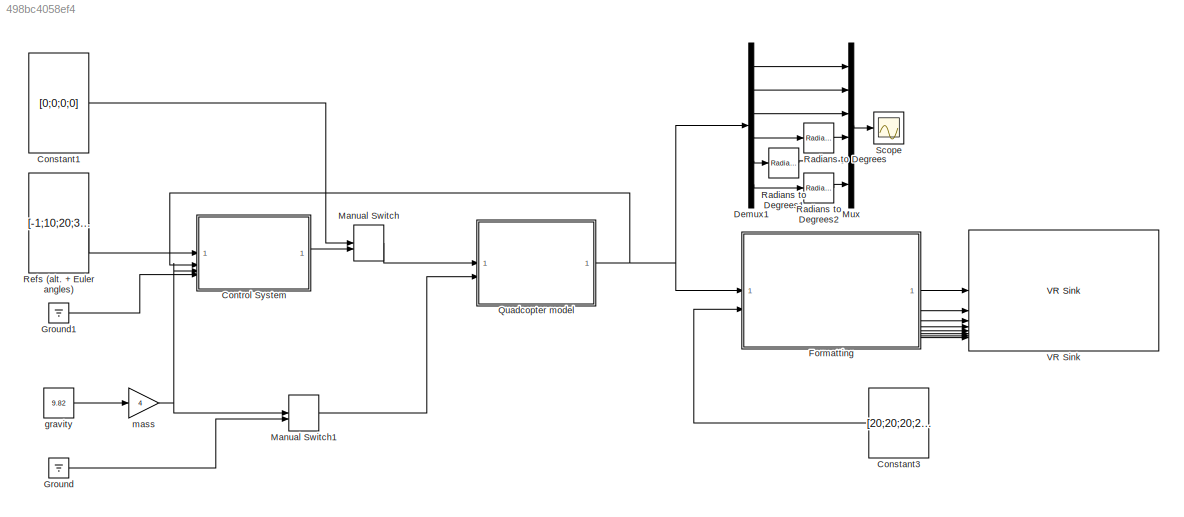
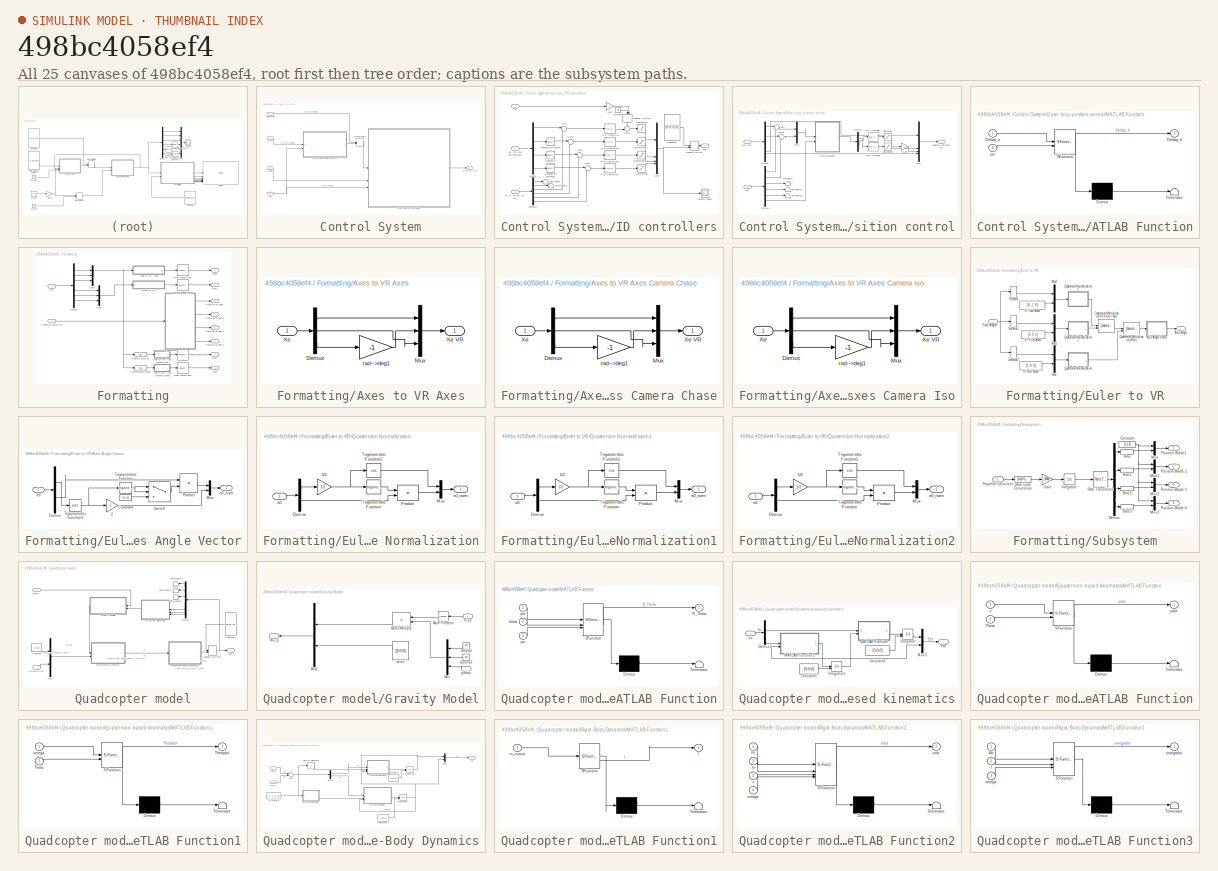
[diagram: thumbnail index - all 25 canvases of the model, root first then tree order]
MODEL slx_498bc4058ef4
KIND model
CONFIG AbsTol = auto
CONFIG EnableMultiTasking = on
CONFIG FixedStep = 0.005
CONFIG MaxStep = auto
CONFIG MinStep = auto
CONFIG RelTol = 1e-3
CONFIG SampleTimeConstraint = Unconstrained
CONFIG SolverName = ode3
CONFIG StartTime = 0
CONFIG StopTime = 15
BLOCK [Constant] Constant1
  Value = [0;0;0;0]
  VectorParams1D = off
BLOCK [Constant] Constant3
  Value = [20;20;20;20]
  VectorParams1D = off
BLOCK [SubSystem] Control System
BLOCK [Outport] Control System/Fz,mx,my,mz
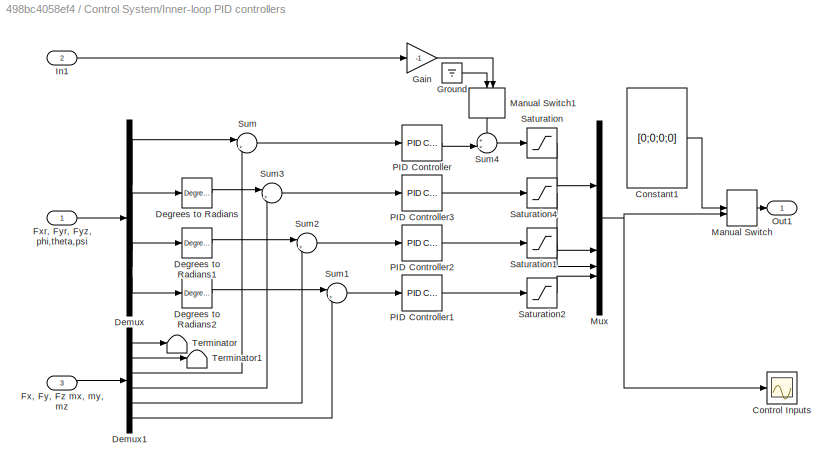
BLOCK [SubSystem] Control System/Inner-loop PID controllers
BLOCK [Constant] Control System/Inner-loop PID controllers/Constant1
  Value = [0;0;0;0]
  VectorParams1D = off
BLOCK [Scope] Control System/Inner-loop PID controllers/Control Inputs
  Floating = off
  NumInputPorts = 1
  ScopeSpecificationString = Simulink.scopes.TimeScopeBlockCfg('CurrentConfiguration', extmgr.ConfigurationSet(extmgr.Configuration('Core','General UI',true),extmgr.Configuration('Core','Source UI',true),extmgr.Configuration('Sources','WiredSimulink',true,'DataLoggingVariableName','ScopeData1'),extmgr.Configuration('Visuals','Time Domain',true,'SerializedDisplays',{struct('MinYLimReal','-16.92451','MaxYLimReal','43.53596','YL...<+1654ch>
BLOCK [Reference] Control System/Inner-loop PID controllers/Degrees to Radians  REF=simulink_extras/Transformations/Degrees to
Radians
  SourceBlock = simulink_extras/Transformations/Degrees to\nRadians
  SourceType = DegreesToRadians
BLOCK [Reference] Control System/Inner-loop PID controllers/Degrees to Radians1  REF=simulink_extras/Transformations/Degrees to
Radians
  SourceBlock = simulink_extras/Transformations/Degrees to\nRadians
  SourceType = DegreesToRadians
BLOCK [Reference] Control System/Inner-loop PID controllers/Degrees to Radians2  REF=simulink_extras/Transformations/Degrees to
Radians
  SourceBlock = simulink_extras/Transformations/Degrees to\nRadians
  SourceType = DegreesToRadians
BLOCK [Demux] Control System/Inner-loop PID controllers/Demux
BLOCK [Demux] Control System/Inner-loop PID controllers/Demux1
  Outputs = 6
BLOCK [Inport] Control System/Inner-loop PID controllers/Fx, Fy, Fz mx, my, mz
  Port = 3
BLOCK [Inport] Control System/Inner-loop PID controllers/Fxr, Fyr, Fyz, phi,theta,psi
BLOCK [Gain] Control System/Inner-loop PID controllers/Gain
  Gain = -1
BLOCK [Ground] Control System/Inner-loop PID controllers/Ground
BLOCK [Inport] Control System/Inner-loop PID controllers/In1
  Port = 2
BLOCK [ManualSwitch] Control System/Inner-loop PID controllers/Manual Switch
  CurrentSetting = 0
BLOCK [ManualSwitch] Control System/Inner-loop PID controllers/Manual Switch1
  CurrentSetting = 0
  NameLocation = left
BLOCK [Mux] Control System/Inner-loop PID controllers/Mux
  DisplayOption = bar
BLOCK [Outport] Control System/Inner-loop PID controllers/Out1
BLOCK [Reference] Control System/Inner-loop PID controllers/PID Controller  REF=slpidlib/PID Controller
  LibrarySourceBlock = simulink/Continuous/PID Controller
  SourceBlock = slpidlib/PID Controller
  SourceType = PID 1dof
BLOCK [Reference] Control System/Inner-loop PID controllers/PID Controller1  REF=slpidlib/PID Controller
  LibrarySourceBlock = simulink/Continuous/PID Controller
  SourceBlock = slpidlib/PID Controller
  SourceType = PID 1dof
BLOCK [Reference] Control System/Inner-loop PID controllers/PID Controller2  REF=slpidlib/PID Controller
  LibrarySourceBlock = simulink/Continuous/PID Controller
  SourceBlock = slpidlib/PID Controller
  SourceType = PID 1dof
BLOCK [Reference] Control System/Inner-loop PID controllers/PID Controller3  REF=slpidlib/PID Controller
  LibrarySourceBlock = simulink/Continuous/PID Controller
  SourceBlock = slpidlib/PID Controller
  SourceType = PID 1dof
BLOCK [Saturate] Control System/Inner-loop PID controllers/Saturation
  LowerLimit = -100
  UpperLimit = 100
BLOCK [Saturate] Control System/Inner-loop PID controllers/Saturation1
  LowerLimit = -100
  UpperLimit = 100
BLOCK [Saturate] Control System/Inner-loop PID controllers/Saturation2
  LowerLimit = -100
  UpperLimit = 100
BLOCK [Saturate] Control System/Inner-loop PID controllers/Saturation4
  LowerLimit = -100
  UpperLimit = 100
BLOCK [Sum] Control System/Inner-loop PID controllers/Sum
  Inputs = |+-
BLOCK [Sum] Control System/Inner-loop PID controllers/Sum1
  Inputs = |+-
BLOCK [Sum] Control System/Inner-loop PID controllers/Sum2
  Inputs = |+-
BLOCK [Sum] Control System/Inner-loop PID controllers/Sum3
  Inputs = |+-
BLOCK [Sum] Control System/Inner-loop PID controllers/Sum4
  Inputs = ++|
BLOCK [Terminator] Control System/Inner-loop PID controllers/Terminator
BLOCK [Terminator] Control System/Inner-loop PID controllers/Terminator1
BLOCK [ManualSwitch] Control System/Manual Switch
  CurrentSetting = 0
BLOCK [SubSystem] Control System/Outer loop position control
BLOCK [Demux] Control System/Outer loop position control/Demux
BLOCK [Demux] Control System/Outer loop position control/Demux1
  Outputs = 6
BLOCK [Demux] Control System/Outer loop position control/Demux2
  Outputs = 2
BLOCK [Gain] Control System/Outer loop position control/Gain
  Gain = -1
BLOCK [SubSystem] Control System/Outer loop position control/MATLAB Function
  ErrorFcn = Stateflow.Translate.translate
  PermitHierarchicalResolution = ExplicitOnly
  SFBlockType = MATLAB Function
  TreatAsAtomicUnit = on
BLOCK [Demux] Control System/Outer loop position control/MATLAB Function/ Demux 
  Outputs = 1
BLOCK [S-Function] Control System/Outer loop position control/MATLAB Function/ SFunction 
  EnableBusSupport = on
  FunctionName = sf_sfun
  PortCounts = [2 2]
  SFcnIsStateOwnerBlock = off
  SFunctionDeploymentMode = off
  Tag = Stateflow S-Function 7
BLOCK [Terminator] Control System/Outer loop position control/MATLAB Function/ Terminator 
BLOCK [Outport] Control System/Outer loop position control/MATLAB Function/Deltap_b
BLOCK [Inport] Control System/Outer loop position control/MATLAB Function/Deltap_e
BLOCK [Inport] Control System/Outer loop position control/MATLAB Function/psi
  Port = 2
BLOCK [Mux] Control System/Outer loop position control/Mux
  DisplayOption = bar
BLOCK [Mux] Control System/Outer loop position control/Mux1
  DisplayOption = bar
  Inputs = 2
BLOCK [Reference] Control System/Outer loop position control/PID Controller  REF=slpidlib/PID Controller
  SourceBlock = slpidlib/PID Controller
  SourceType = PID 1dof
BLOCK [Reference] Control System/Outer loop position control/PID Controller2  REF=slpidlib/PID Controller
  SourceBlock = slpidlib/PID Controller
  SourceType = PID 1dof
BLOCK [Inport] Control System/Outer loop position control/Pos. refs
BLOCK [Saturate] Control System/Outer loop position control/Saturation
  LowerLimit = -5
  UpperLimit = 5
BLOCK [Saturate] Control System/Outer loop position control/Saturation1
  LowerLimit = -5
  UpperLimit = 5
BLOCK [Sum] Control System/Outer loop position control/Sum
  Inputs = |+-
BLOCK [Sum] Control System/Outer loop position control/Sum1
  Inputs = |+-
BLOCK [Terminator] Control System/Outer loop position control/Terminator
BLOCK [Terminator] Control System/Outer loop position control/Terminator1
BLOCK [Terminator] Control System/Outer loop position control/Terminator2
BLOCK [Outport] Control System/Outer loop position control/desired z,phi,theta,psi
BLOCK [Inport] Control System/Outer loop position control/eta
  Port = 2
BLOCK [Inport] Control System/eta
  Port = 2
BLOCK [Inport] Control System/gamepad
  Port = 4
BLOCK [Inport] Control System/gravity
  Port = 3
BLOCK [Inport] Control System/refs
BLOCK [Demux] Demux1
  Outputs = 6
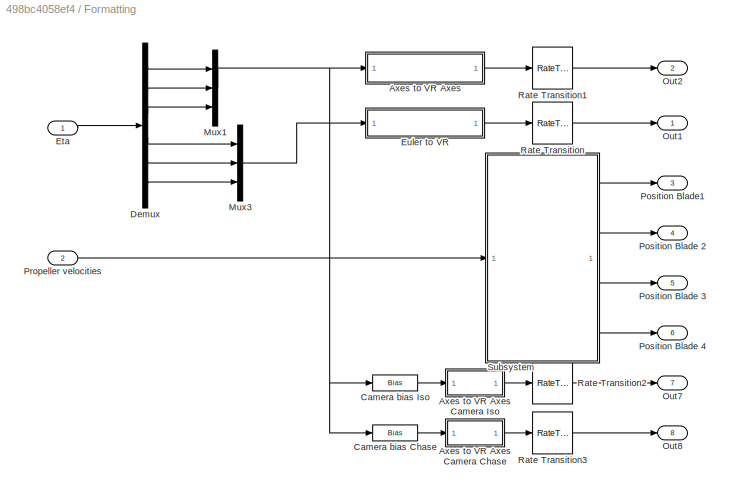
BLOCK [SubSystem] Formatting
BLOCK [SubSystem] Formatting/Axes to VR Axes
BLOCK [SubSystem] Formatting/Axes to VR Axes Camera Chase
BLOCK [Demux] Formatting/Axes to VR Axes Camera Chase/Demux
  DisplayOption = none
  Outputs = 3
BLOCK [Mux] Formatting/Axes to VR Axes Camera Chase/Mux
  DisplayOption = bar
  Inputs = 3
BLOCK [Inport] Formatting/Axes to VR Axes Camera Chase/Xe
BLOCK [Outport] Formatting/Axes to VR Axes Camera Chase/Xe VR
  VectorParamsAs1DForOutWhenUnconnected = off
BLOCK [Gain] Formatting/Axes to VR Axes Camera Chase/rad-->deg1
  Gain = -1
  NameLocation = top
  OutDataTypeStr = Inherit: Same as input
  ParamDataTypeStr = Inherit: Same as input
  SaturateOnIntegerOverflow = on
BLOCK [SubSystem] Formatting/Axes to VR Axes Camera Iso
BLOCK [Demux] Formatting/Axes to VR Axes Camera Iso/Demux
  DisplayOption = none
  Outputs = 3
BLOCK [Mux] Formatting/Axes to VR Axes Camera Iso/Mux
  DisplayOption = bar
  Inputs = 3
BLOCK [Inport] Formatting/Axes to VR Axes Camera Iso/Xe
BLOCK [Outport] Formatting/Axes to VR Axes Camera Iso/Xe VR
  VectorParamsAs1DForOutWhenUnconnected = off
BLOCK [Gain] Formatting/Axes to VR Axes Camera Iso/rad-->deg1
  Gain = -1
  NameLocation = top
  OutDataTypeStr = Inherit: Same as input
  ParamDataTypeStr = Inherit: Same as input
  SaturateOnIntegerOverflow = on
BLOCK [Demux] Formatting/Axes to VR Axes/Demux
  DisplayOption = none
  Outputs = 3
BLOCK [Mux] Formatting/Axes to VR Axes/Mux
  DisplayOption = bar
  Inputs = 3
BLOCK [Inport] Formatting/Axes to VR Axes/Xe
BLOCK [Outport] Formatting/Axes to VR Axes/Xe VR
  VectorParamsAs1DForOutWhenUnconnected = off
BLOCK [Gain] Formatting/Axes to VR Axes/rad-->deg1
  Gain = -1
  NameLocation = top
  OutDataTypeStr = Inherit: Same as input
  ParamDataTypeStr = Inherit: Same as input
  SaturateOnIntegerOverflow = on
BLOCK [Bias] Formatting/Camera bias Chase
  Bias = [-4 0 -.9558]'
  SaturateOnIntegerOverflow = off
BLOCK [Bias] Formatting/Camera bias Iso
  Bias = [0.9009 .99 -.6247]'
  SaturateOnIntegerOverflow = off
BLOCK [Demux] Formatting/Demux
  Outputs = 6
BLOCK [Inport] Formatting/Eta
BLOCK [SubSystem] Formatting/Euler to VR
BLOCK [Outport] Formatting/Euler to VR/Axis Angle
  VectorParamsAs1DForOutWhenUnconnected = off
BLOCK [SubSystem] Formatting/Euler to VR/Axis Angle Vector
BLOCK [Gain] Formatting/Euler to VR/Axis Angle Vector/2
  Gain = 2
  OutDataTypeStr = Inherit: Same as input
  ParamDataTypeStr = Inherit: Same as input
  SaturateOnIntegerOverflow = on
BLOCK [Constant] Formatting/Euler to VR/Axis Angle Vector/Constant
  Value = 1e-6
BLOCK [Demux] Formatting/Euler to VR/Axis Angle Vector/Demux
  DisplayOption = none
  Outputs = [1 3 ]
BLOCK [Mux] Formatting/Euler to VR/Axis Angle Vector/Mux
  DisplayOption = bar
  Inputs = 2
BLOCK [Product] Formatting/Euler to VR/Axis Angle Vector/Product
  InputSameDT = on
  Inputs = */
  OutDataTypeStr = Inherit: Same as first input
  SaturateOnIntegerOverflow = on
BLOCK [Switch] Formatting/Euler to VR/Axis Angle Vector/Switch
  Criteria = u2 ~= 0
  InputSameDT = off
  SaturateOnIntegerOverflow = off
BLOCK [Trigonometry] Formatting/Euler to VR/Axis Angle Vector/Trigonometric Function
BLOCK [Trigonometry] Formatting/Euler to VR/Axis Angle Vector/Trigonometric Function2
  Operator = acos
BLOCK [Inport] Formatting/Euler to VR/Axis Angle Vector/e0
BLOCK [Outport] Formatting/Euler to VR/Axis Angle Vector/e0_norm
  VectorParamsAs1DForOutWhenUnconnected = off
BLOCK [Inport] Formatting/Euler to VR/Euler Angles
BLOCK [Mux] Formatting/Euler to VR/Mux
  DisplayOption = bar
  Inputs = 2
BLOCK [Mux] Formatting/Euler to VR/Mux1
  DisplayOption = bar
  Inputs = 2
BLOCK [Mux] Formatting/Euler to VR/Mux2
  DisplayOption = bar
  Inputs = 2
BLOCK [Reference] Formatting/Euler to VR/Quaternion Multiplication (Pitch & Yaw)  REF=aerolibutil/Quaternion
Multiplication
  SourceBlock = aerolibutil/Quaternion\nMultiplication
  SourceType = Quaternion Multiplication
BLOCK [Reference] Formatting/Euler to VR/Quaternion Multiplication (Roll)  REF=aerolibutil/Quaternion
Multiplication
  SourceBlock = aerolibutil/Quaternion\nMultiplication
  SourceType = Quaternion Multiplication
BLOCK [SubSystem] Formatting/Euler to VR/Quaternion Normalization
BLOCK [Gain] Formatting/Euler to VR/Quaternion Normalization/1//2
  Gain = 1/2
  OutDataTypeStr = Inherit: Same as input
  ParamDataTypeStr = Inherit: Same as input
  SaturateOnIntegerOverflow = on
BLOCK [Demux] Formatting/Euler to VR/Quaternion Normalization/Demux
  DisplayOption = none
  Outputs = [1 3]
BLOCK [Mux] Formatting/Euler to VR/Quaternion Normalization/Mux
  DisplayOption = bar
  Inputs = 2
BLOCK [Product] Formatting/Euler to VR/Quaternion Normalization/Product
  InputSameDT = on
  OutDataTypeStr = Inherit: Same as first input
  SaturateOnIntegerOverflow = on
BLOCK [Trigonometry] Formatting/Euler to VR/Quaternion Normalization/Trigonometric Function
BLOCK [Trigonometry] Formatting/Euler to VR/Quaternion Normalization/Trigonometric Function1
  Operator = cos
BLOCK [Inport] Formatting/Euler to VR/Quaternion Normalization/e0
BLOCK [Outport] Formatting/Euler to VR/Quaternion Normalization/e0_norm
  VectorParamsAs1DForOutWhenUnconnected = off
BLOCK [SubSystem] Formatting/Euler to VR/Quaternion Normalization1
BLOCK [Gain] Formatting/Euler to VR/Quaternion Normalization1/1//2
  Gain = 1/2
  OutDataTypeStr = Inherit: Same as input
  ParamDataTypeStr = Inherit: Same as input
  SaturateOnIntegerOverflow = on
BLOCK [Demux] Formatting/Euler to VR/Quaternion Normalization1/Demux
  DisplayOption = none
  Outputs = [1 3]
BLOCK [Mux] Formatting/Euler to VR/Quaternion Normalization1/Mux
  DisplayOption = bar
  Inputs = 2
BLOCK [Product] Formatting/Euler to VR/Quaternion Normalization1/Product
  InputSameDT = on
  OutDataTypeStr = Inherit: Same as first input
  SaturateOnIntegerOverflow = on
BLOCK [Trigonometry] Formatting/Euler to VR/Quaternion Normalization1/Trigonometric Function
BLOCK [Trigonometry] Formatting/Euler to VR/Quaternion Normalization1/Trigonometric Function1
  Operator = cos
BLOCK [Inport] Formatting/Euler to VR/Quaternion Normalization1/e0
BLOCK [Outport] Formatting/Euler to VR/Quaternion Normalization1/e0_norm
  VectorParamsAs1DForOutWhenUnconnected = off
BLOCK [SubSystem] Formatting/Euler to VR/Quaternion Normalization2
BLOCK [Gain] Formatting/Euler to VR/Quaternion Normalization2/1//2
  Gain = 1/2
  OutDataTypeStr = Inherit: Same as input
  ParamDataTypeStr = Inherit: Same as input
  SaturateOnIntegerOverflow = on
BLOCK [Demux] Formatting/Euler to VR/Quaternion Normalization2/Demux
  DisplayOption = none
  Outputs = [1 3]
BLOCK [Mux] Formatting/Euler to VR/Quaternion Normalization2/Mux
  DisplayOption = bar
  Inputs = 2
BLOCK [Product] Formatting/Euler to VR/Quaternion Normalization2/Product
  InputSameDT = on
  OutDataTypeStr = Inherit: Same as first input
  SaturateOnIntegerOverflow = on
BLOCK [Trigonometry] Formatting/Euler to VR/Quaternion Normalization2/Trigonometric Function
BLOCK [Trigonometry] Formatting/Euler to VR/Quaternion Normalization2/Trigonometric Function1
  Operator = cos
BLOCK [Inport] Formatting/Euler to VR/Quaternion Normalization2/e0
BLOCK [Outport] Formatting/Euler to VR/Quaternion Normalization2/e0_norm
  VectorParamsAs1DForOutWhenUnconnected = off
BLOCK [Selector] Formatting/Euler to VR/Selector
  IndexOptions = Index vector (dialog)
  Indices = [3]
  InputPortWidth = 3
  OutputSizes = 1
BLOCK [Selector] Formatting/Euler to VR/Selector1
  IndexOptions = Index vector (dialog)
  Indices = [2]
  InputPortWidth = 3
  OutputSizes = 1
BLOCK [Selector] Formatting/Euler to VR/Selector2
  IndexOptions = Index vector (dialog)
  Indices = [1]
  InputPortWidth = 3
  OutputSizes = 1
BLOCK [Constant] Formatting/Euler to VR/Vr Pitch Axes
  NameLocation = top
  Value = [0 0 1]
BLOCK [Constant] Formatting/Euler to VR/Vr Roll Axes
  NameLocation = top
  Value = [1 0 0]
BLOCK [Constant] Formatting/Euler to VR/Vr Yaw Axes
  Value = [0 -1 0]
BLOCK [Mux] Formatting/Mux1
  DisplayOption = bar
  Inputs = 3
BLOCK [Mux] Formatting/Mux3
  DisplayOption = bar
  Inputs = 3
BLOCK [Outport] Formatting/Out1
BLOCK [Outport] Formatting/Out2
  Port = 2
BLOCK [Outport] Formatting/Out7
  Port = 7
BLOCK [Outport] Formatting/Out8
  Port = 8
BLOCK [Outport] Formatting/Position Blade 2
  Port = 4
BLOCK [Outport] Formatting/Position Blade 3
  Port = 5
BLOCK [Outport] Formatting/Position Blade 4
  Port = 6
BLOCK [Outport] Formatting/Position Blade1
  Port = 3
BLOCK [Inport] Formatting/Propeller velocities
  Port = 2
BLOCK [RateTransition] Formatting/Rate Transition
BLOCK [RateTransition] Formatting/Rate Transition1
BLOCK [RateTransition] Formatting/Rate Transition2
BLOCK [RateTransition] Formatting/Rate Transition3
BLOCK [SubSystem] Formatting/Subsystem
BLOCK [Bias] Formatting/Subsystem/Bias
  Bias = .1
  SaturateOnIntegerOverflow = off
BLOCK [Bias] Formatting/Subsystem/Bias1
  Bias = -.3
  SaturateOnIntegerOverflow = off
BLOCK [Bias] Formatting/Subsystem/Bias2
  Bias = .5
  SaturateOnIntegerOverflow = off
BLOCK [Bias] Formatting/Subsystem/Bias3
  Bias = .7
  SaturateOnIntegerOverflow = off
BLOCK [Constant] Formatting/Subsystem/Constant
  Value = [0 1 0]
BLOCK [DataTypeConversion] Formatting/Subsystem/Data Type Conversion
  OutDataTypeStr = double
  RndMeth = Floor
  SaturateOnIntegerOverflow = off
BLOCK [Demux] Formatting/Subsystem/Demux
BLOCK [Gain] Formatting/Subsystem/Gain
  Gain = 1.38408
BLOCK [Integrator] Formatting/Subsystem/Integrator
  InitialCondition = [.1 ; .2 ;-.3 ;-.4]
  WrapState = on
  WrappedStateLowerValue = -2*pi
  WrappedStateUpperValue = 2*pi
BLOCK [Mux] Formatting/Subsystem/Mux
  DisplayOption = bar
  Inputs = 2
BLOCK [Mux] Formatting/Subsystem/Mux1
  DisplayOption = bar
  Inputs = 2
BLOCK [Mux] Formatting/Subsystem/Mux2
  DisplayOption = bar
  Inputs = 2
BLOCK [Mux] Formatting/Subsystem/Mux3
  DisplayOption = bar
  Inputs = 2
BLOCK [Outport] Formatting/Subsystem/Position Blade 2
  Port = 2
  VectorParamsAs1DForOutWhenUnconnected = off
BLOCK [Outport] Formatting/Subsystem/Position Blade 3
  Port = 3
  VectorParamsAs1DForOutWhenUnconnected = off
BLOCK [Outport] Formatting/Subsystem/Position Blade 4
  Port = 4
  VectorParamsAs1DForOutWhenUnconnected = off
BLOCK [Outport] Formatting/Subsystem/Position Blade1
  VectorParamsAs1DForOutWhenUnconnected = off
BLOCK [Inport] Formatting/Subsystem/Propeller velocities
BLOCK [RateTransition] Formatting/Subsystem/Rate Transition2
BLOCK [Ground] Ground
BLOCK [Ground] Ground1
BLOCK [ManualSwitch] Manual Switch
  CurrentSetting = 0
BLOCK [ManualSwitch] Manual Switch1
BLOCK [Mux] Mux
  DisplayOption = bar
  Inputs = 6
BLOCK [SubSystem] Quadcopter model
BLOCK [Constant] Quadcopter model/Constant
  Value = [0;0]
BLOCK [Constant] Quadcopter model/Constant1
  NameLocation = top
  Value = [30;30;-10;0;0;0]
  VectorParams1D = off
BLOCK [Demux] Quadcopter model/Demux
  NameLocation = top
  Outputs = 6
BLOCK [Inport] Quadcopter model/Fz,mx,my,mz
BLOCK [SubSystem] Quadcopter model/Gravity Model
BLOCK [Ground] Quadcopter model/Gravity Model/Ground
  NameLocation = top
BLOCK [Ground] Quadcopter model/Gravity Model/Ground1
  NameLocation = top
BLOCK [Math] Quadcopter model/Gravity Model/Math Function
  Operator = transpose
BLOCK [Product] Quadcopter model/Gravity Model/Matrix Multiply
  Multiplication = Matrix(*)
BLOCK [Mux] Quadcopter model/Gravity Model/Mux
  DisplayOption = bar
  Inputs = 3
  NameLocation = top
BLOCK [Mux] Quadcopter model/Gravity Model/Mux2
  DisplayOption = bar
  Inputs = 2
  NameLocation = top
BLOCK [Inport] Quadcopter model/Gravity Model/R_be
  Port = 2
BLOCK [Inport] Quadcopter model/Gravity Model/gravity
BLOCK [Outport] Quadcopter model/Gravity Model/tau_g
BLOCK [Constant] Quadcopter model/Gravity Model/zeros
  NameLocation = top
  Value = [0;0;0]
  VectorParams1D = off
BLOCK [SubSystem] Quadcopter model/MATLAB Function
  ErrorFcn = Stateflow.Translate.translate
  NameLocation = top
  PermitHierarchicalResolution = ExplicitOnly
  SFBlockType = MATLAB Function
  TreatAsAtomicUnit = on
BLOCK [Demux] Quadcopter model/MATLAB Function/ Demux 
  Outputs = 1
BLOCK [S-Function] Quadcopter model/MATLAB Function/ SFunction 
  EnableBusSupport = on
  FunctionName = sf_sfun
  PortCounts = [3 2]
  SFcnIsStateOwnerBlock = off
  SFunctionDeploymentMode = off
  Tag = Stateflow S-Function 6
BLOCK [Terminator] Quadcopter model/MATLAB Function/ Terminator 
BLOCK [Outport] Quadcopter model/MATLAB Function/R_Theta
BLOCK [Inport] Quadcopter model/MATLAB Function/phi
BLOCK [Inport] Quadcopter model/MATLAB Function/psi
  Port = 3
BLOCK [Inport] Quadcopter model/MATLAB Function/theta
  Port = 2
BLOCK [ManualSwitch] Quadcopter model/Manual Switch2
  CurrentSetting = 0
BLOCK [Mux] Quadcopter model/Mux1
  DisplayOption = bar
  Inputs = 2
BLOCK [SubSystem] Quadcopter model/Quaternion-based kinematics
  NameLocation = top
BLOCK [Constant] Quadcopter model/Quaternion-based kinematics/Constant3
  Value = [0;0;0]
BLOCK [Constant] Quadcopter model/Quaternion-based kinematics/Constant5
  Value = [0;0;0]
BLOCK [Demux] Quadcopter model/Quaternion-based kinematics/Demux2
  Outputs = 2
BLOCK [Integrator] Quadcopter model/Quaternion-based kinematics/Integrator
  InitialConditionSource = external
BLOCK [Integrator] Quadcopter model/Quaternion-based kinematics/Integrator1
  InitialConditionSource = external
BLOCK [SubSystem] Quadcopter model/Quaternion-based kinematics/MATLAB Function
  ErrorFcn = Stateflow.Translate.translate
  PermitHierarchicalResolution = ExplicitOnly
  SFBlockType = MATLAB Function
  TreatAsAtomicUnit = on
BLOCK [Demux] Quadcopter model/Quaternion-based kinematics/MATLAB Function/ Demux 
  Outputs = 1
BLOCK [S-Function] Quadcopter model/Quaternion-based kinematics/MATLAB Function/ SFunction 
  EnableBusSupport = on
  FunctionName = sf_sfun
  PortCounts = [2 2]
  SFcnIsStateOwnerBlock = off
  SFunctionDeploymentMode = off
  Tag = Stateflow S-Function 2
BLOCK [Terminator] Quadcopter model/Quaternion-based kinematics/MATLAB Function/ Terminator 
BLOCK [Inport] Quadcopter model/Quaternion-based kinematics/MATLAB Function/Theta
  Port = 2
BLOCK [Outport] Quadcopter model/Quaternion-based kinematics/MATLAB Function/pdot
BLOCK [Inport] Quadcopter model/Quaternion-based kinematics/MATLAB Function/v
BLOCK [SubSystem] Quadcopter model/Quaternion-based kinematics/MATLAB Function1
  ErrorFcn = Stateflow.Translate.translate
  PermitHierarchicalResolution = ExplicitOnly
  SFBlockType = MATLAB Function
  TreatAsAtomicUnit = on
BLOCK [Demux] Quadcopter model/Quaternion-based kinematics/MATLAB Function1/ Demux 
  Outputs = 1
BLOCK [S-Function] Quadcopter model/Quaternion-based kinematics/MATLAB Function1/ SFunction 
  EnableBusSupport = on
  FunctionName = sf_sfun
  PortCounts = [2 2]
  SFcnIsStateOwnerBlock = off
  SFunctionDeploymentMode = off
  Tag = Stateflow S-Function 5
BLOCK [Terminator] Quadcopter model/Quaternion-based kinematics/MATLAB Function1/ Terminator 
BLOCK [Inport] Quadcopter model/Quaternion-based kinematics/MATLAB Function1/Theta
  Port = 2
BLOCK [Outport] Quadcopter model/Quaternion-based kinematics/MATLAB Function1/Thetadot
BLOCK [Inport] Quadcopter model/Quaternion-based kinematics/MATLAB Function1/omega
BLOCK [Mux] Quadcopter model/Quaternion-based kinematics/Mux3
  DisplayOption = bar
  Inputs = 2
BLOCK [Outport] Quadcopter model/Quaternion-based kinematics/eta
BLOCK [Inport] Quadcopter model/Quaternion-based kinematics/nu
BLOCK [SubSystem] Quadcopter model/Rigid-Body Dynamics
BLOCK [Constant] Quadcopter model/Rigid-Body Dynamics/Constant5
  Value = [0;0;0]
BLOCK [Constant] Quadcopter model/Rigid-Body Dynamics/Constant6
  Value = [0;0;0]
BLOCK [Demux] Quadcopter model/Rigid-Body Dynamics/Demux
  Outputs = 2
BLOCK [Integrator] Quadcopter model/Rigid-Body Dynamics/Integrator
  InitialConditionSource = external
BLOCK [Integrator] Quadcopter model/Rigid-Body Dynamics/Integrator2
  InitialConditionSource = external
BLOCK [SubSystem] Quadcopter model/Rigid-Body Dynamics/MATLAB Function1
  ErrorFcn = Stateflow.Translate.translate
  PermitHierarchicalResolution = ExplicitOnly
  SFBlockType = MATLAB Function
  TreatAsAtomicUnit = on
BLOCK [Demux] Quadcopter model/Rigid-Body Dynamics/MATLAB Function1/ Demux 
  Outputs = 1
BLOCK [S-Function] Quadcopter model/Rigid-Body Dynamics/MATLAB Function1/ SFunction 
  EnableBusSupport = on
  FunctionName = sf_sfun
  PortCounts = [1 2]
  SFcnIsStateOwnerBlock = off
  SFunctionDeploymentMode = off
  Tag = Stateflow S-Function 1
BLOCK [Terminator] Quadcopter model/Rigid-Body Dynamics/MATLAB Function1/ Terminator 
BLOCK [Outport] Quadcopter model/Rigid-Body Dynamics/MATLAB Function1/I
BLOCK [Inport] Quadcopter model/Rigid-Body Dynamics/MATLAB Function1/m_motors
BLOCK [SubSystem] Quadcopter model/Rigid-Body Dynamics/MATLAB Function2
  ErrorFcn = Stateflow.Translate.translate
  PermitHierarchicalResolution = ExplicitOnly
  SFBlockType = MATLAB Function
  TreatAsAtomicUnit = on
BLOCK [Demux] Quadcopter model/Rigid-Body Dynamics/MATLAB Function2/ Demux 
  Outputs = 1
BLOCK [S-Function] Quadcopter model/Rigid-Body Dynamics/MATLAB Function2/ SFunction 
  EnableBusSupport = on
  FunctionName = sf_sfun
  PortCounts = [4 2]
  SFcnIsStateOwnerBlock = off
  SFunctionDeploymentMode = off
  Tag = Stateflow S-Function 3
BLOCK [Terminator] Quadcopter model/Rigid-Body Dynamics/MATLAB Function2/ Terminator 
BLOCK [Inport] Quadcopter model/Rigid-Body Dynamics/MATLAB Function2/Fc
BLOCK [Inport] Quadcopter model/Rigid-Body Dynamics/MATLAB Function2/m
  Port = 2
BLOCK [Inport] Quadcopter model/Rigid-Body Dynamics/MATLAB Function2/omega
  Port = 4
BLOCK [Inport] Quadcopter model/Rigid-Body Dynamics/MATLAB Function2/v
  Port = 3
BLOCK [Outport] Quadcopter model/Rigid-Body Dynamics/MATLAB Function2/vdot
BLOCK [SubSystem] Quadcopter model/Rigid-Body Dynamics/MATLAB Function3
  ErrorFcn = Stateflow.Translate.translate
  PermitHierarchicalResolution = ExplicitOnly
  SFBlockType = MATLAB Function
  TreatAsAtomicUnit = on
BLOCK [Demux] Quadcopter model/Rigid-Body Dynamics/MATLAB Function3/ Demux 
  Outputs = 1
BLOCK [S-Function] Quadcopter model/Rigid-Body Dynamics/MATLAB Function3/ SFunction 
  EnableBusSupport = on
  FunctionName = sf_sfun
  PortCounts = [3 2]
  SFcnIsStateOwnerBlock = off
  SFunctionDeploymentMode = off
  Tag = Stateflow S-Function 4
BLOCK [Terminator] Quadcopter model/Rigid-Body Dynamics/MATLAB Function3/ Terminator 
BLOCK [Inport] Quadcopter model/Rigid-Body Dynamics/MATLAB Function3/I
  Port = 2
BLOCK [Inport] Quadcopter model/Rigid-Body Dynamics/MATLAB Function3/Mc
BLOCK [Inport] Quadcopter model/Rigid-Body Dynamics/MATLAB Function3/omega
  Port = 3
BLOCK [Outport] Quadcopter model/Rigid-Body Dynamics/MATLAB Function3/omegadot
BLOCK [Mux] Quadcopter model/Rigid-Body Dynamics/Mux
  DisplayOption = bar
  Inputs = 2
BLOCK [Sum] Quadcopter model/Rigid-Body Dynamics/Sum
  Inputs = |++|
BLOCK [Sum] Quadcopter model/Rigid-Body Dynamics/Sum of Elements
  IconShape = rectangular
  Inputs = +
BLOCK [Constant] Quadcopter model/Rigid-Body Dynamics/m_motors
  Value = [1, 1, 1, 1]
BLOCK [Outport] Quadcopter model/Rigid-Body Dynamics/nu
BLOCK [Inport] Quadcopter model/Rigid-Body Dynamics/tau_g
BLOCK [Inport] Quadcopter model/Rigid-Body Dynamics/tau_p
  Port = 2
BLOCK [Terminator] Quadcopter model/Terminator
  NameLocation = top
BLOCK [Terminator] Quadcopter model/Terminator1
  NameLocation = top
BLOCK [Terminator] Quadcopter model/Terminator2
  NameLocation = top
BLOCK [Outport] Quadcopter model/eta
BLOCK [Inport] Quadcopter model/gravity
  Port = 2
BLOCK [Reference] Radians to Degrees  REF=simulink_extras/Transformations/Radians
to Degrees
  SourceBlock = simulink_extras/Transformations/Radians\nto Degrees
  SourceType = RadiansToDegrees
BLOCK [Reference] Radians to Degrees1  REF=simulink_extras/Transformations/Radians
to Degrees
  SourceBlock = simulink_extras/Transformations/Radians\nto Degrees
  SourceType = RadiansToDegrees
BLOCK [Reference] Radians to Degrees2  REF=simulink_extras/Transformations/Radians
to Degrees
  SourceBlock = simulink_extras/Transformations/Radians\nto Degrees
  SourceType = RadiansToDegrees
BLOCK [Constant] Refs (alt. + Euler angles)
  Value = [-1;10;20;30]
  VectorParams1D = off
BLOCK [Scope] Scope
  Floating = off
  NumInputPorts = 1
  ScopeSpecificationString = Simulink.scopes.TimeScopeBlockCfg('CurrentConfiguration', extmgr.ConfigurationSet(extmgr.Configuration('Core','General UI',true),extmgr.Configuration('Core','Source UI',true),extmgr.Configuration('Sources','WiredSimulink',true,'DataLoggingVariableName','ScopeData1'),extmgr.Configuration('Visuals','Time Domain',true,'SerializedDisplays',{struct('MinYLimReal','-10.23948','MaxYLimReal','38.43299','YL...<+1706ch>
BLOCK [Reference] VR Sink  REF=vrlib/VR Sink
  InstantiateOnLoad = on
  SourceBlock = vrlib/VR Sink
  SourceType = Virtual Reality Sink
BLOCK [Constant] gravity
  Value = 9.82
BLOCK [Gain] mass
  Gain = 4
ANNOTATION Quadcopter model: Forces and Torques Vector
ANNOTATION Quadcopter model: $\eta$
ANNOTATION Quadcopter model: $\nu$
ANNOTATION Quadcopter model: $\tau$
ANNOTATION Quadcopter model: Positions and Euler Angles
ANNOTATION Quadcopter model: Translational and Angular Velocities
LINE Constant1:1 -> Manual Switch:1
LINE Constant3:1 -> Formatting:2
LINE Control System/Inner-loop PID controllers/Constant1:1 -> Control System/Inner-loop PID controllers/Manual Switch:1
LINE Control System/Inner-loop PID controllers/Degrees to Radians1:1 -> Control System/Inner-loop PID controllers/Sum2:1
LINE Control System/Inner-loop PID controllers/Degrees to Radians2:1 -> Control System/Inner-loop PID controllers/Sum1:1
LINE Control System/Inner-loop PID controllers/Degrees to Radians:1 -> Control System/Inner-loop PID controllers/Sum3:1
LINE Control System/Inner-loop PID controllers/Demux1:1 -> Control System/Inner-loop PID controllers/Terminator:1
LINE Control System/Inner-loop PID controllers/Demux1:2 -> Control System/Inner-loop PID controllers/Terminator1:1
LINE Control System/Inner-loop PID controllers/Demux1:3 -> Control System/Inner-loop PID controllers/Sum:2
LINE Control System/Inner-loop PID controllers/Demux1:4 -> Control System/Inner-loop PID controllers/Sum3:2
LINE Control System/Inner-loop PID controllers/Demux1:5 -> Control System/Inner-loop PID controllers/Sum2:2
LINE Control System/Inner-loop PID controllers/Demux1:6 -> Control System/Inner-loop PID controllers/Sum1:2
LINE Control System/Inner-loop PID controllers/Demux:1 -> Control System/Inner-loop PID controllers/Sum:1
LINE Control System/Inner-loop PID controllers/Demux:2 -> Control System/Inner-loop PID controllers/Degrees to Radians:1
LINE Control System/Inner-loop PID controllers/Demux:3 -> Control System/Inner-loop PID controllers/Degrees to Radians1:1
LINE Control System/Inner-loop PID controllers/Demux:4 -> Control System/Inner-loop PID controllers/Degrees to Radians2:1
LINE Control System/Inner-loop PID controllers/Fx, Fy, Fz mx, my, mz:1 -> Control System/Inner-loop PID controllers/Demux1:1
LINE Control System/Inner-loop PID controllers/Fxr, Fyr, Fyz, phi,theta,psi:1 -> Control System/Inner-loop PID controllers/Demux:1
LINE Control System/Inner-loop PID controllers/Gain:1 -> Control System/Inner-loop PID controllers/Manual Switch1:2
LINE Control System/Inner-loop PID controllers/Ground:1 -> Control System/Inner-loop PID controllers/Manual Switch1:1
LINE Control System/Inner-loop PID controllers/In1:1 -> Control System/Inner-loop PID controllers/Gain:1
LINE Control System/Inner-loop PID controllers/Manual Switch1:1 -> Control System/Inner-loop PID controllers/Sum4:1
LINE Control System/Inner-loop PID controllers/Manual Switch:1 -> Control System/Inner-loop PID controllers/Out1:1
NET Control System/Inner-loop PID controllers/Mux:1 -> Control System/Inner-loop PID controllers/Control Inputs:1, Control System/Inner-loop PID controllers/Manual Switch:2
LINE Control System/Inner-loop PID controllers/PID Controller1:1 -> Control System/Inner-loop PID controllers/Saturation2:1
LINE Control System/Inner-loop PID controllers/PID Controller2:1 -> Control System/Inner-loop PID controllers/Saturation1:1
LINE Control System/Inner-loop PID controllers/PID Controller3:1 -> Control System/Inner-loop PID controllers/Saturation4:1
LINE Control System/Inner-loop PID controllers/PID Controller:1 -> Control System/Inner-loop PID controllers/Sum4:2
LINE Control System/Inner-loop PID controllers/Saturation1:1 -> Control System/Inner-loop PID controllers/Mux:3
LINE Control System/Inner-loop PID controllers/Saturation2:1 -> Control System/Inner-loop PID controllers/Mux:4
LINE Control System/Inner-loop PID controllers/Saturation4:1 -> Control System/Inner-loop PID controllers/Mux:2
LINE Control System/Inner-loop PID controllers/Saturation:1 -> Control System/Inner-loop PID controllers/Mux:1
LINE Control System/Inner-loop PID controllers/Sum1:1 -> Control System/Inner-loop PID controllers/PID Controller1:1
LINE Control System/Inner-loop PID controllers/Sum2:1 -> Control System/Inner-loop PID controllers/PID Controller2:1
LINE Control System/Inner-loop PID controllers/Sum3:1 -> Control System/Inner-loop PID controllers/PID Controller3:1
LINE Control System/Inner-loop PID controllers/Sum4:1 -> Control System/Inner-loop PID controllers/Saturation:1
LINE Control System/Inner-loop PID controllers/Sum:1 -> Control System/Inner-loop PID controllers/PID Controller:1
LINE Control System/Inner-loop PID controllers:1 -> Control System/Fz,mx,my,mz:1
LINE Control System/Manual Switch:1 -> Control System/Inner-loop PID controllers:1
LINE Control System/Outer loop position control/Demux1:1 -> Control System/Outer loop position control/Sum:2
LINE Control System/Outer loop position control/Demux1:2 -> Control System/Outer loop position control/Sum1:2
LINE Control System/Outer loop position control/Demux1:3 -> Control System/Outer loop position control/Terminator:1
LINE Control System/Outer loop position control/Demux1:4 -> Control System/Outer loop position control/Terminator1:1
LINE Control System/Outer loop position control/Demux1:5 -> Control System/Outer loop position control/Terminator2:1
LINE Control System/Outer loop position control/Demux1:6 -> Control System/Outer loop position control/MATLAB Function:2
LINE Control System/Outer loop position control/Demux2:1 -> Control System/Outer loop position control/PID Controller:1
LINE Control System/Outer loop position control/Demux2:2 -> Control System/Outer loop position control/PID Controller2:1
LINE Control System/Outer loop position control/Demux:1 -> Control System/Outer loop position control/Sum:1
LINE Control System/Outer loop position control/Demux:2 -> Control System/Outer loop position control/Sum1:1
LINE Control System/Outer loop position control/Demux:3 -> Control System/Outer loop position control/Mux:1
LINE Control System/Outer loop position control/Demux:4 -> Control System/Outer loop position control/Mux:4
LINE Control System/Outer loop position control/Gain:1 -> Control System/Outer loop position control/Mux:3
LINE Control System/Outer loop position control/MATLAB Function:1 -> Control System/Outer loop position control/Demux2:1
LINE Control System/Outer loop position control/Mux1:1 -> Control System/Outer loop position control/MATLAB Function:1
LINE Control System/Outer loop position control/Mux:1 -> Control System/Outer loop position control/desired z,phi,theta,psi:1
LINE Control System/Outer loop position control/PID Controller2:1 -> Control System/Outer loop position control/Saturation:1
LINE Control System/Outer loop position control/PID Controller:1 -> Control System/Outer loop position control/Saturation1:1
LINE Control System/Outer loop position control/Pos. refs:1 -> Control System/Outer loop position control/Demux:1
LINE Control System/Outer loop position control/Saturation1:1 -> Control System/Outer loop position control/Gain:1
LINE Control System/Outer loop position control/Saturation:1 -> Control System/Outer loop position control/Mux:2
LINE Control System/Outer loop position control/Sum1:1 -> Control System/Outer loop position control/Mux1:2
LINE Control System/Outer loop position control/Sum:1 -> Control System/Outer loop position control/Mux1:1
LINE Control System/Outer loop position control/eta:1 -> Control System/Outer loop position control/Demux1:1
LINE Control System/Outer loop position control:1 -> Control System/Manual Switch:2
NET Control System/eta:1 -> Control System/Inner-loop PID controllers:3, Control System/Outer loop position control:2
LINE Control System/gamepad:1 -> Control System/Manual Switch:1
LINE Control System/gravity:1 -> Control System/Inner-loop PID controllers:2
LINE Control System/refs:1 -> Control System/Outer loop position control:1
LINE Control System:1 -> Manual Switch:2
LINE Demux1:1 -> Mux:1
LINE Demux1:2 -> Mux:2
LINE Demux1:3 -> Mux:3
LINE Demux1:4 -> Radians to Degrees:1
LINE Demux1:5 -> Radians to Degrees1:1
LINE Demux1:6 -> Radians to Degrees2:1
LINE Formatting/Axes to VR Axes Camera Chase/Demux:1 -> Formatting/Axes to VR Axes Camera Chase/Mux:1
LINE Formatting/Axes to VR Axes Camera Chase/Demux:2 -> Formatting/Axes to VR Axes Camera Chase/Mux:3
LINE Formatting/Axes to VR Axes Camera Chase/Demux:3 -> Formatting/Axes to VR Axes Camera Chase/rad-->deg1:1
LINE Formatting/Axes to VR Axes Camera Chase/Mux:1 -> Formatting/Axes to VR Axes Camera Chase/Xe VR:1
LINE Formatting/Axes to VR Axes Camera Chase/Xe:1 -> Formatting/Axes to VR Axes Camera Chase/Demux:1
LINE Formatting/Axes to VR Axes Camera Chase/rad-->deg1:1 -> Formatting/Axes to VR Axes Camera Chase/Mux:2
LINE Formatting/Axes to VR Axes Camera Chase:1 -> Formatting/Rate Transition3:1
LINE Formatting/Axes to VR Axes Camera Iso/Demux:1 -> Formatting/Axes to VR Axes Camera Iso/Mux:1
LINE Formatting/Axes to VR Axes Camera Iso/Demux:2 -> Formatting/Axes to VR Axes Camera Iso/Mux:3
LINE Formatting/Axes to VR Axes Camera Iso/Demux:3 -> Formatting/Axes to VR Axes Camera Iso/rad-->deg1:1
LINE Formatting/Axes to VR Axes Camera Iso/Mux:1 -> Formatting/Axes to VR Axes Camera Iso/Xe VR:1
LINE Formatting/Axes to VR Axes Camera Iso/Xe:1 -> Formatting/Axes to VR Axes Camera Iso/Demux:1
LINE Formatting/Axes to VR Axes Camera Iso/rad-->deg1:1 -> Formatting/Axes to VR Axes Camera Iso/Mux:2
LINE Formatting/Axes to VR Axes Camera Iso:1 -> Formatting/Rate Transition2:1
LINE Formatting/Axes to VR Axes/Demux:1 -> Formatting/Axes to VR Axes/Mux:1
LINE Formatting/Axes to VR Axes/Demux:2 -> Formatting/Axes to VR Axes/Mux:3
LINE Formatting/Axes to VR Axes/Demux:3 -> Formatting/Axes to VR Axes/rad-->deg1:1
LINE Formatting/Axes to VR Axes/Mux:1 -> Formatting/Axes to VR Axes/Xe VR:1
LINE Formatting/Axes to VR Axes/Xe:1 -> Formatting/Axes to VR Axes/Demux:1
LINE Formatting/Axes to VR Axes/rad-->deg1:1 -> Formatting/Axes to VR Axes/Mux:2
LINE Formatting/Axes to VR Axes:1 -> Formatting/Rate Transition1:1
LINE Formatting/Camera bias Chase:1 -> Formatting/Axes to VR Axes Camera Chase:1
LINE Formatting/Camera bias Iso:1 -> Formatting/Axes to VR Axes Camera Iso:1
LINE Formatting/Demux:1 -> Formatting/Mux1:1
LINE Formatting/Demux:2 -> Formatting/Mux1:2
LINE Formatting/Demux:3 -> Formatting/Mux1:3
LINE Formatting/Demux:4 -> Formatting/Mux3:1
LINE Formatting/Demux:5 -> Formatting/Mux3:2
LINE Formatting/Demux:6 -> Formatting/Mux3:3
LINE Formatting/Eta:1 -> Formatting/Demux:1
LINE Formatting/Euler to VR/Axis Angle Vector/2:1 -> Formatting/Euler to VR/Axis Angle Vector/Mux:2
LINE Formatting/Euler to VR/Axis Angle Vector/Constant:1 -> Formatting/Euler to VR/Axis Angle Vector/Switch:3
LINE Formatting/Euler to VR/Axis Angle Vector/Demux:1 -> Formatting/Euler to VR/Axis Angle Vector/Trigonometric Function2:1
LINE Formatting/Euler to VR/Axis Angle Vector/Demux:2 -> Formatting/Euler to VR/Axis Angle Vector/Product:1
LINE Formatting/Euler to VR/Axis Angle Vector/Mux:1 -> Formatting/Euler to VR/Axis Angle Vector/e0_norm:1
LINE Formatting/Euler to VR/Axis Angle Vector/Product:1 -> Formatting/Euler to VR/Axis Angle Vector/Mux:1
LINE Formatting/Euler to VR/Axis Angle Vector/Switch:1 -> Formatting/Euler to VR/Axis Angle Vector/Product:2
NET Formatting/Euler to VR/Axis Angle Vector/Trigonometric Function2:1 -> Formatting/Euler to VR/Axis Angle Vector/2:1, Formatting/Euler to VR/Axis Angle Vector/Trigonometric Function:1
NET Formatting/Euler to VR/Axis Angle Vector/Trigonometric Function:1 -> Formatting/Euler to VR/Axis Angle Vector/Switch:1, Formatting/Euler to VR/Axis Angle Vector/Switch:2
LINE Formatting/Euler to VR/Axis Angle Vector/e0:1 -> Formatting/Euler to VR/Axis Angle Vector/Demux:1
LINE Formatting/Euler to VR/Axis Angle Vector:1 -> Formatting/Euler to VR/Axis Angle:1
NET Formatting/Euler to VR/Euler Angles:1 -> Formatting/Euler to VR/Selector1:1, Formatting/Euler to VR/Selector2:1, Formatting/Euler to VR/Selector:1
LINE Formatting/Euler to VR/Mux1:1 -> Formatting/Euler to VR/Quaternion Normalization1:1
LINE Formatting/Euler to VR/Mux2:1 -> Formatting/Euler to VR/Quaternion Normalization2:1
LINE Formatting/Euler to VR/Mux:1 -> Formatting/Euler to VR/Quaternion Normalization:1
LINE Formatting/Euler to VR/Quaternion Multiplication (Pitch & Yaw):1 -> Formatting/Euler to VR/Quaternion Multiplication (Roll):1
LINE Formatting/Euler to VR/Quaternion Multiplication (Roll):1 -> Formatting/Euler to VR/Axis Angle Vector:1
NET Formatting/Euler to VR/Quaternion Normalization/1//2:1 -> Formatting/Euler to VR/Quaternion Normalization/Trigonometric Function1:1, Formatting/Euler to VR/Quaternion Normalization/Trigonometric Function:1
LINE Formatting/Euler to VR/Quaternion Normalization/Demux:1 -> Formatting/Euler to VR/Quaternion Normalization/1//2:1
LINE Formatting/Euler to VR/Quaternion Normalization/Demux:2 -> Formatting/Euler to VR/Quaternion Normalization/Product:2
LINE Formatting/Euler to VR/Quaternion Normalization/Mux:1 -> Formatting/Euler to VR/Quaternion Normalization/e0_norm:1
LINE Formatting/Euler to VR/Quaternion Normalization/Product:1 -> Formatting/Euler to VR/Quaternion Normalization/Mux:2
LINE Formatting/Euler to VR/Quaternion Normalization/Trigonometric Function1:1 -> Formatting/Euler to VR/Quaternion Normalization/Mux:1
LINE Formatting/Euler to VR/Quaternion Normalization/Trigonometric Function:1 -> Formatting/Euler to VR/Quaternion Normalization/Product:1
LINE Formatting/Euler to VR/Quaternion Normalization/e0:1 -> Formatting/Euler to VR/Quaternion Normalization/Demux:1
NET Formatting/Euler to VR/Quaternion Normalization1/1//2:1 -> Formatting/Euler to VR/Quaternion Normalization1/Trigonometric Function1:1, Formatting/Euler to VR/Quaternion Normalization1/Trigonometric Function:1
LINE Formatting/Euler to VR/Quaternion Normalization1/Demux:1 -> Formatting/Euler to VR/Quaternion Normalization1/1//2:1
LINE Formatting/Euler to VR/Quaternion Normalization1/Demux:2 -> Formatting/Euler to VR/Quaternion Normalization1/Product:2
LINE Formatting/Euler to VR/Quaternion Normalization1/Mux:1 -> Formatting/Euler to VR/Quaternion Normalization1/e0_norm:1
LINE Formatting/Euler to VR/Quaternion Normalization1/Product:1 -> Formatting/Euler to VR/Quaternion Normalization1/Mux:2
LINE Formatting/Euler to VR/Quaternion Normalization1/Trigonometric Function1:1 -> Formatting/Euler to VR/Quaternion Normalization1/Mux:1
LINE Formatting/Euler to VR/Quaternion Normalization1/Trigonometric Function:1 -> Formatting/Euler to VR/Quaternion Normalization1/Product:1
LINE Formatting/Euler to VR/Quaternion Normalization1/e0:1 -> Formatting/Euler to VR/Quaternion Normalization1/Demux:1
LINE Formatting/Euler to VR/Quaternion Normalization1:1 -> Formatting/Euler to VR/Quaternion Multiplication (Pitch & Yaw):2
NET Formatting/Euler to VR/Quaternion Normalization2/1//2:1 -> Formatting/Euler to VR/Quaternion Normalization2/Trigonometric Function1:1, Formatting/Euler to VR/Quaternion Normalization2/Trigonometric Function:1
LINE Formatting/Euler to VR/Quaternion Normalization2/Demux:1 -> Formatting/Euler to VR/Quaternion Normalization2/1//2:1
LINE Formatting/Euler to VR/Quaternion Normalization2/Demux:2 -> Formatting/Euler to VR/Quaternion Normalization2/Product:2
LINE Formatting/Euler to VR/Quaternion Normalization2/Mux:1 -> Formatting/Euler to VR/Quaternion Normalization2/e0_norm:1
LINE Formatting/Euler to VR/Quaternion Normalization2/Product:1 -> Formatting/Euler to VR/Quaternion Normalization2/Mux:2
LINE Formatting/Euler to VR/Quaternion Normalization2/Trigonometric Function1:1 -> Formatting/Euler to VR/Quaternion Normalization2/Mux:1
LINE Formatting/Euler to VR/Quaternion Normalization2/Trigonometric Function:1 -> Formatting/Euler to VR/Quaternion Normalization2/Product:1
LINE Formatting/Euler to VR/Quaternion Normalization2/e0:1 -> Formatting/Euler to VR/Quaternion Normalization2/Demux:1
LINE Formatting/Euler to VR/Quaternion Normalization2:1 -> Formatting/Euler to VR/Quaternion Multiplication (Pitch & Yaw):1
LINE Formatting/Euler to VR/Quaternion Normalization:1 -> Formatting/Euler to VR/Quaternion Multiplication (Roll):2
LINE Formatting/Euler to VR/Selector1:1 -> Formatting/Euler to VR/Mux1:1
LINE Formatting/Euler to VR/Selector2:1 -> Formatting/Euler to VR/Mux:1
LINE Formatting/Euler to VR/Selector:1 -> Formatting/Euler to VR/Mux2:1
LINE Formatting/Euler to VR/Vr Pitch Axes:1 -> Formatting/Euler to VR/Mux1:2
LINE Formatting/Euler to VR/Vr Roll Axes:1 -> Formatting/Euler to VR/Mux:2
LINE Formatting/Euler to VR/Vr Yaw Axes:1 -> Formatting/Euler to VR/Mux2:2
LINE Formatting/Euler to VR:1 -> Formatting/Rate Transition:1
NET Formatting/Mux1:1 -> Formatting/Axes to VR Axes:1, Formatting/Camera bias Chase:1, Formatting/Camera bias Iso:1
LINE Formatting/Mux3:1 -> Formatting/Euler to VR:1
LINE Formatting/Propeller velocities:1 -> Formatting/Subsystem:1
LINE Formatting/Rate Transition1:1 -> Formatting/Out2:1
LINE Formatting/Rate Transition2:1 -> Formatting/Out7:1
LINE Formatting/Rate Transition3:1 -> Formatting/Out8:1
LINE Formatting/Rate Transition:1 -> Formatting/Out1:1
LINE Formatting/Subsystem/Bias1:1 -> Formatting/Subsystem/Mux1:2
LINE Formatting/Subsystem/Bias2:1 -> Formatting/Subsystem/Mux2:2
LINE Formatting/Subsystem/Bias3:1 -> Formatting/Subsystem/Mux3:2
LINE Formatting/Subsystem/Bias:1 -> Formatting/Subsystem/Mux:2
NET Formatting/Subsystem/Constant:1 -> Formatting/Subsystem/Mux1:1, Formatting/Subsystem/Mux2:1, Formatting/Subsystem/Mux3:1, Formatting/Subsystem/Mux:1
LINE Formatting/Subsystem/Data Type Conversion:1 -> Formatting/Subsystem/Gain:1
LINE Formatting/Subsystem/Demux:1 -> Formatting/Subsystem/Bias:1
LINE Formatting/Subsystem/Demux:2 -> Formatting/Subsystem/Bias1:1
LINE Formatting/Subsystem/Demux:3 -> Formatting/Subsystem/Bias2:1
LINE Formatting/Subsystem/Demux:4 -> Formatting/Subsystem/Bias3:1
LINE Formatting/Subsystem/Gain:1 -> Formatting/Subsystem/Integrator:1
LINE Formatting/Subsystem/Integrator:1 -> Formatting/Subsystem/Rate Transition2:1
LINE Formatting/Subsystem/Mux1:1 -> Formatting/Subsystem/Position Blade 2:1
LINE Formatting/Subsystem/Mux2:1 -> Formatting/Subsystem/Position Blade 3:1
LINE Formatting/Subsystem/Mux3:1 -> Formatting/Subsystem/Position Blade 4:1
LINE Formatting/Subsystem/Mux:1 -> Formatting/Subsystem/Position Blade1:1
LINE Formatting/Subsystem/Propeller velocities:1 -> Formatting/Subsystem/Data Type Conversion:1
LINE Formatting/Subsystem/Rate Transition2:1 -> Formatting/Subsystem/Demux:1
LINE Formatting/Subsystem:1 -> Formatting/Position Blade1:1
LINE Formatting/Subsystem:2 -> Formatting/Position Blade 2:1
LINE Formatting/Subsystem:3 -> Formatting/Position Blade 3:1
LINE Formatting/Subsystem:4 -> Formatting/Position Blade 4:1
LINE Formatting:1 -> VR Sink:1
LINE Formatting:2 -> VR Sink:2
LINE Formatting:3 -> VR Sink:3
LINE Formatting:4 -> VR Sink:4
LINE Formatting:5 -> VR Sink:5
LINE Formatting:6 -> VR Sink:6
LINE Formatting:7 -> VR Sink:7
LINE Formatting:8 -> VR Sink:8
LINE Ground1:1 -> Control System:4
LINE Ground:1 -> Manual Switch1:2
LINE Manual Switch1:1 -> Quadcopter model:2
LINE Manual Switch:1 -> Quadcopter model:1
LINE Mux:1 -> Scope:1
LINE Quadcopter model/Constant1:1 -> Quadcopter model/Manual Switch2:1
LINE Quadcopter model/Constant:1 -> Quadcopter model/Mux1:1
LINE Quadcopter model/Demux:1 -> Quadcopter model/Terminator:1
LINE Quadcopter model/Demux:2 -> Quadcopter model/Terminator1:1
LINE Quadcopter model/Demux:3 -> Quadcopter model/Terminator2:1
LINE Quadcopter model/Demux:4 -> Quadcopter model/MATLAB Function:1
LINE Quadcopter model/Demux:5 -> Quadcopter model/MATLAB Function:2
LINE Quadcopter model/Demux:6 -> Quadcopter model/MATLAB Function:3
LINE Quadcopter model/Fz,mx,my,mz:1 -> Quadcopter model/Mux1:2
LINE Quadcopter model/Gravity Model/Ground1:1 -> Quadcopter model/Gravity Model/Mux:2
LINE Quadcopter model/Gravity Model/Ground:1 -> Quadcopter model/Gravity Model/Mux:1
LINE Quadcopter model/Gravity Model/Math Function:1 -> Quadcopter model/Gravity Model/Matrix Multiply:1
LINE Quadcopter model/Gravity Model/Matrix Multiply:1 -> Quadcopter model/Gravity Model/Mux2:1
LINE Quadcopter model/Gravity Model/Mux2:1 -> Quadcopter model/Gravity Model/tau_g:1
LINE Quadcopter model/Gravity Model/Mux:1 -> Quadcopter model/Gravity Model/Matrix Multiply:2
LINE Quadcopter model/Gravity Model/R_be:1 -> Quadcopter model/Gravity Model/Math Function:1
LINE Quadcopter model/Gravity Model/gravity:1 -> Quadcopter model/Gravity Model/Mux:3
LINE Quadcopter model/Gravity Model/zeros:1 -> Quadcopter model/Gravity Model/Mux2:2
LINE Quadcopter model/Gravity Model:1 -> Quadcopter model/Rigid-Body Dynamics:1
LINE Quadcopter model/MATLAB Function:1 -> Quadcopter model/Gravity Model:2
NET Quadcopter model/Manual Switch2:1 -> Quadcopter model/Demux:1, Quadcopter model/eta:1
LINE Quadcopter model/Mux1:1 -> Quadcopter model/Rigid-Body Dynamics:2
LINE Quadcopter model/Quaternion-based kinematics/Constant3:1 -> Quadcopter model/Quaternion-based kinematics/Integrator:2
LINE Quadcopter model/Quaternion-based kinematics/Constant5:1 -> Quadcopter model/Quaternion-based kinematics/Integrator1:2
LINE Quadcopter model/Quaternion-based kinematics/Demux2:1 -> Quadcopter model/Quaternion-based kinematics/MATLAB Function:1
LINE Quadcopter model/Quaternion-based kinematics/Demux2:2 -> Quadcopter model/Quaternion-based kinematics/MATLAB Function1:1
NET Quadcopter model/Quaternion-based kinematics/Integrator1:1 -> Quadcopter model/Quaternion-based kinematics/MATLAB Function1:2, Quadcopter model/Quaternion-based kinematics/MATLAB Function:2, Quadcopter model/Quaternion-based kinematics/Mux3:2
LINE Quadcopter model/Quaternion-based kinematics/Integrator:1 -> Quadcopter model/Quaternion-based kinematics/Mux3:1
LINE Quadcopter model/Quaternion-based kinematics/MATLAB Function1:1 -> Quadcopter model/Quaternion-based kinematics/Integrator1:1
LINE Quadcopter model/Quaternion-based kinematics/MATLAB Function:1 -> Quadcopter model/Quaternion-based kinematics/Integrator:1
LINE Quadcopter model/Quaternion-based kinematics/Mux3:1 -> Quadcopter model/Quaternion-based kinematics/eta:1
LINE Quadcopter model/Quaternion-based kinematics/nu:1 -> Quadcopter model/Quaternion-based kinematics/Demux2:1
LINE Quadcopter model/Quaternion-based kinematics:1 -> Quadcopter model/Manual Switch2:2
LINE Quadcopter model/Rigid-Body Dynamics/Constant5:1 -> Quadcopter model/Rigid-Body Dynamics/Integrator:2
LINE Quadcopter model/Rigid-Body Dynamics/Constant6:1 -> Quadcopter model/Rigid-Body Dynamics/Integrator2:2
LINE Quadcopter model/Rigid-Body Dynamics/Demux:1 -> Quadcopter model/Rigid-Body Dynamics/MATLAB Function2:1
LINE Quadcopter model/Rigid-Body Dynamics/Demux:2 -> Quadcopter model/Rigid-Body Dynamics/MATLAB Function3:1
NET Quadcopter model/Rigid-Body Dynamics/Integrator2:1 -> Quadcopter model/Rigid-Body Dynamics/MATLAB Function2:4, Quadcopter model/Rigid-Body Dynamics/MATLAB Function3:3, Quadcopter model/Rigid-Body Dynamics/Mux:2
NET Quadcopter model/Rigid-Body Dynamics/Integrator:1 -> Quadcopter model/Rigid-Body Dynamics/MATLAB Function2:3, Quadcopter model/Rigid-Body Dynamics/Mux:1
LINE Quadcopter model/Rigid-Body Dynamics/MATLAB Function1:1 -> Quadcopter model/Rigid-Body Dynamics/MATLAB Function3:2
LINE Quadcopter model/Rigid-Body Dynamics/MATLAB Function2:1 -> Quadcopter model/Rigid-Body Dynamics/Integrator:1
LINE Quadcopter model/Rigid-Body Dynamics/MATLAB Function3:1 -> Quadcopter model/Rigid-Body Dynamics/Integrator2:1
LINE Quadcopter model/Rigid-Body Dynamics/Mux:1 -> Quadcopter model/Rigid-Body Dynamics/nu:1
LINE Quadcopter model/Rigid-Body Dynamics/Sum of Elements:1 -> Quadcopter model/Rigid-Body Dynamics/MATLAB Function2:2
LINE Quadcopter model/Rigid-Body Dynamics/Sum:1 -> Quadcopter model/Rigid-Body Dynamics/Demux:1
NET Quadcopter model/Rigid-Body Dynamics/m_motors:1 -> Quadcopter model/Rigid-Body Dynamics/MATLAB Function1:1, Quadcopter model/Rigid-Body Dynamics/Sum of Elements:1
LINE Quadcopter model/Rigid-Body Dynamics/tau_g:1 -> Quadcopter model/Rigid-Body Dynamics/Sum:1
LINE Quadcopter model/Rigid-Body Dynamics/tau_p:1 -> Quadcopter model/Rigid-Body Dynamics/Sum:2
LINE Quadcopter model/Rigid-Body Dynamics:1 -> Quadcopter model/Quaternion-based kinematics:1
LINE Quadcopter model/gravity:1 -> Quadcopter model/Gravity Model:1
NET Quadcopter model:1 -> Control System:2, Demux1:1, Formatting:1
LINE Radians to Degrees1:1 -> Mux:5
LINE Radians to Degrees2:1 -> Mux:6
LINE Radians to Degrees:1 -> Mux:4
LINE Refs (alt. + Euler angles):1 -> Control System:1
LINE gravity:1 -> mass:1
NET mass:1 -> Control System:3, Manual Switch1:1
note: NET lines group one-source signal fan-out (src -> all destinations, sorted); 1:1 wires keep LINE
CHART Quadcopter model/Rigid-Body Dynamics/MATLAB Function1 states=1 transitions=1
  STATE_LABEL 'eML_blk_kernel()'
  STATE_LABEL 'SCRIPT:\nfunction I = I_quad_x(m_motors)\n% Moment of inertia for Quad X\n\nquad_x_points = [ 1/sqrt(2),1/sqrt(2), 0; \n                     1/sqrt(2), -1/sqrt(2), 0; \n                    -1/sqrt(2), 1/sqrt(2), 0; \n                     -1/sqrt(2),-1/sqrt(2), 0];\n\nI = m_motors(1)*get_matrix(quad_x_points(1,:)) + m_motors(2)*get_matrix(quad_x_points(2,:)) + m_motors(3)*get_matrix(quad_x_points(3,:)) + m_...<+247ch>'
CHART Quadcopter model/Quaternion-based kinematics/MATLAB Function states=1 transitions=1
  STATE_LABEL 'eML_blk_kernel()'
  STATE_LABEL 'SCRIPT:\nfunction pdot = fcn(v, Theta)\n    roll = Theta(1);\n    pitch = Theta(2);\n    yaw = Theta(3);\n    \n    rotation = Rz(yaw) * Ry(pitch) * Rx(roll);\n    \n    pdot = rotation * v;\nend\n\nfunction Rot = Rx(roll)\n    Rot = [1,        0,         0;\n           0,        cos(roll),  -sin(roll);\n           0,        sin(roll),   cos(roll);];\nend\n\nfunction Rot = Ry(pitch)\n    Rot = [cos(pitch),  0,    s...<+228ch>'
CHART Quadcopter model/Rigid-Body Dynamics/MATLAB Function2 states=1 transitions=1
  STATE_LABEL 'eML_blk_kernel()'
  STATE_LABEL 'SCRIPT:\nfunction vdot = fcn(Fc, m, v, omega)\nvdot = 1/m * (Fc - cross(omega, m*v));\nend'
CHART Quadcopter model/Rigid-Body Dynamics/MATLAB Function3 states=1 transitions=1
  STATE_LABEL 'eML_blk_kernel()'
  STATE_LABEL 'SCRIPT:\nfunction omegadot = fcn(Mc, I, omega)\nomegadot = inv(I)*(Mc - cross(omega, I*omega));\nend'
CHART Quadcopter model/Quaternion-based kinematics/MATLAB Function1 states=1 transitions=1
  STATE_LABEL 'eML_blk_kernel()'
  STATE_LABEL 'SCRIPT:\nfunction Thetadot = fcn(omega, Theta)\nroll = Theta(1); %phi\npitch = Theta(2); %theta\nyaw = Theta(3); %psi\n\nThetadot = Transformation(roll, pitch, yaw) * omega;\nend\n\nfunction mat = Transformation(roll, pitch, yaw)\n    mat = [1,        sin(roll)*sin(pitch)/cos(pitch),   cos(roll)*sin(pitch)/cos(pitch);\n           0,        cos(roll),                         -sin(roll);\n           0,        s...<+61ch>'
CHART Quadcopter model/MATLAB Function states=1 transitions=1
  STATE_LABEL 'eML_blk_kernel()'
  STATE_LABEL 'SCRIPT:\nfunction R_Theta = Rot(phi, theta, psi)\n\nR_x = [1 0        0;\n       0 cos(phi) -sin(phi);\n       0 sin(phi) cos(phi)];\n\nR_y = [cos(theta)  0 sin(theta);\n       0           1 0;\n       -sin(theta) 0 cos(theta)];\n\nR_z = [cos(psi) -sin(psi) 0;\n       sin(psi) cos(psi)  0;\n       0        0         1];\n\nR_Theta = R_z * R_y * R_x;\n'
CHART Control System/Outer loop position control/MATLAB Function states=1 transitions=1
  STATE_LABEL 'eML_blk_kernel()'
  STATE_LABEL "SCRIPT:\nfunction Deltap_b = fcn(Deltap_e,psi)\n\nR = [ cos(psi) , -sin(psi) ;\n      sin(psi) ,  cos(psi) ];\n\nDeltap_b = R'*Deltap_e;\n"
CHART  states=0 transitions=0
CHART  states=0 transitions=0
CHART  states=0 transitions=0
CHART  states=0 transitions=0
CHART  states=0 transitions=0
CHART  states=0 transitions=0
CHART  states=0 transitions=0
